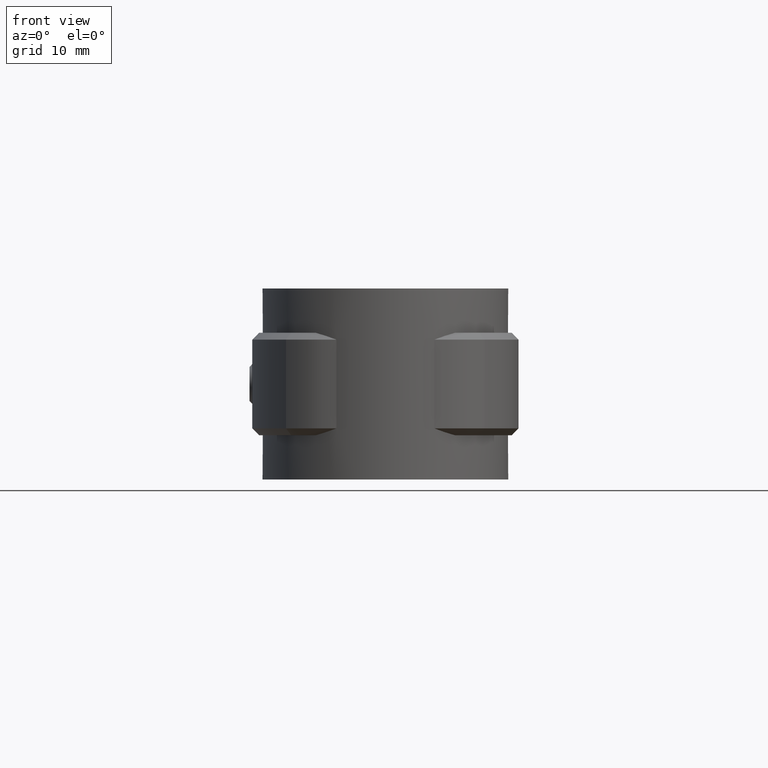
[diagram: clean part render]
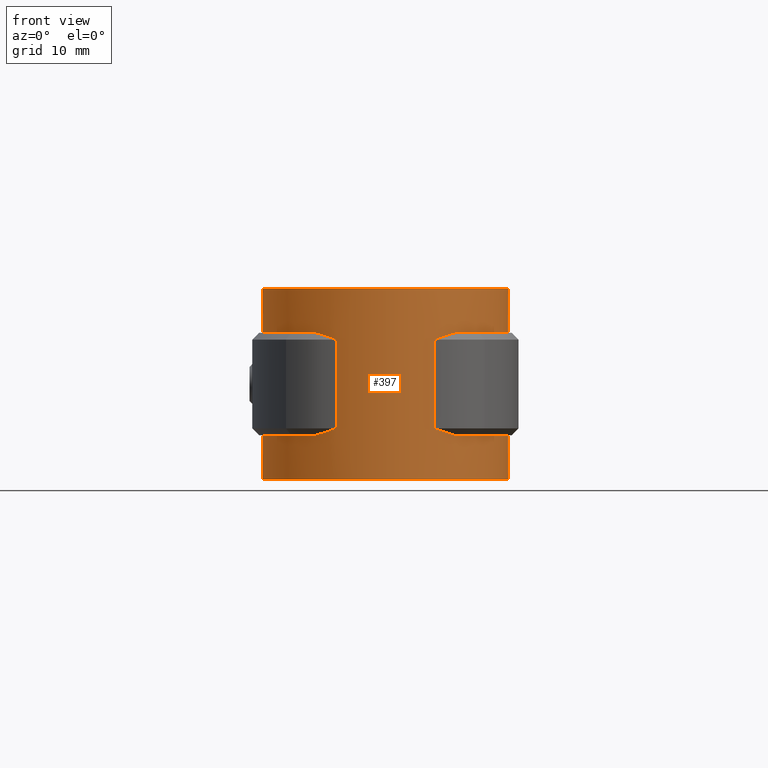
[diagram: same view with one face highlighted and labeled with its STEP entity id]
A machine part, front view. The second image highlights one B-rep face of the part: STEP entity #397.
In plain terms, the highlighted cylindrical surface (partial cylindrical patch) has radius 18.035 mm, axis along (0, 0, -1).
Its self-contained STEP definition (entity closure, byte-faithful):
#397 = ADVANCED_FACE( '', ( #693 ), #694, .T. );
#693 = FACE_OUTER_BOUND( '', #1575, .T. );
#694 = CYLINDRICAL_SURFACE( '', #1576, 18.0350000000000 );
#1575 = EDGE_LOOP( '', ( #3640, #3641, #3642, #3643, #3644, #3645, #3646, #3647, #3648, #3649, #3650, #3651, #3652, #3653, #3654, #3655 ) );
#1576 = AXIS2_PLACEMENT_3D( '', #3656, #3657, #3658 );
#3640 = ORIENTED_EDGE( '', *, *, #4930, .F. );
#3641 = ORIENTED_EDGE( '', *, *, #4931, .T. );
#3642 = ORIENTED_EDGE( '', *, *, #4932, .T. );
#3643 = ORIENTED_EDGE( '', *, *, #4933, .T. );
#3644 = ORIENTED_EDGE( '', *, *, #4934, .T. );
#3645 = ORIENTED_EDGE( '', *, *, #4923, .T. );
#3646 = ORIENTED_EDGE( '', *, *, #4914, .T. );
#3647 = ORIENTED_EDGE( '', *, *, #4783, .F. );
#3648 = ORIENTED_EDGE( '', *, *, #4935, .T. );
#3649 = ORIENTED_EDGE( '', *, *, #4936, .T. );
#3650 = ORIENTED_EDGE( '', *, *, #4937, .T. );
#3651 = ORIENTED_EDGE( '', *, *, #4938, .T. );
#3652 = ORIENTED_EDGE( '', *, *, #4939, .F. );
#3653 = ORIENTED_EDGE( '', *, *, #4777, .F. );
#3654 = ORIENTED_EDGE( '', *, *, #4775, .F. );
#3655 = ORIENTED_EDGE( '', *, *, #4929, .T. );
#3656 = CARTESIAN_POINT( '', ( 0.000000000000000, 0.000000000000000, -26.5000000000000 ) );
#3657 = DIRECTION( '', ( 0.000000000000000, 0.000000000000000, -1.00000000000000 ) );
#3658 = DIRECTION( '', ( 0.000000000000000, -1.00000000000000, 0.000000000000000 ) );
#4775 = EDGE_CURVE( '', #5446, #5429, #5448, .T. );
#4777 = EDGE_CURVE( '', #5429, #5451, #5452, .T. );
#4783 = EDGE_CURVE( '', #5461, #5463, #5464, .T. );
#4914 = EDGE_CURVE( '', #5684, #5463, #5685, .T. );
#4923 = EDGE_CURVE( '', #5700, #5684, #5701, .T. );
#4929 = EDGE_CURVE( '', #5446, #5710, #5712, .T. );
#4930 = EDGE_CURVE( '', #5713, #5710, #5714, .T. );
#4931 = EDGE_CURVE( '', #5713, #5715, #5716, .T. );
#4932 = EDGE_CURVE( '', #5715, #5717, #5718, .T. );
#4933 = EDGE_CURVE( '', #5717, #5719, #5720, .T. );
#4934 = EDGE_CURVE( '', #5719, #5700, #5721, .T. );
#4935 = EDGE_CURVE( '', #5461, #5722, #5723, .T. );
#4936 = EDGE_CURVE( '', #5722, #5724, #5725, .T. );
#4937 = EDGE_CURVE( '', #5724, #5726, #5727, .F. );
#4938 = EDGE_CURVE( '', #5726, #5728, #5729, .T. );
#4939 = EDGE_CURVE( '', #5451, #5728, #5730, .T. );
#5429 = VERTEX_POINT( '', #7111 );
#5446 = VERTEX_POINT( '', #7133 );
#5448 = CIRCLE( '', #7136, 18.0350000000000 );
#5451 = VERTEX_POINT( '', #7140 );
#5452 = LINE( '', #7141, #7142 );
#5461 = VERTEX_POINT( '', #7159 );
#5463 = VERTEX_POINT( '', #7162 );
#5464 = LINE( '', #7163, #7164 );
#5684 = VERTEX_POINT( '', #8114 );
#5685 = CIRCLE( '', #8115, 18.0350000000000 );
#5700 = VERTEX_POINT( '', #8135 );
#5701 = LINE( '', #8136, #8137 );
#5710 = VERTEX_POINT( '', #8154 );
#5712 = LINE( '', #8157, #8158 );
#5713 = VERTEX_POINT( '', #8159 );
#5714 = CIRCLE( '', #8160, 18.0350000000000 );
#5715 = VERTEX_POINT( '', #8161 );
#5716 = B_SPLINE_CURVE_WITH_KNOTS( '', 3, ( #8162, #8163, #8164, #8165 ), .UNSPECIFIED., .F., .F., ( 4, 4 ), ( 0.000000000000000, 0.00356639113726257 ), .UNSPECIFIED. );
#5717 = VERTEX_POINT( '', #8166 );
#5718 = LINE( '', #8167, #8168 );
#5719 = VERTEX_POINT( '', #8169 );
#5720 = B_SPLINE_CURVE_WITH_KNOTS( '', 3, ( #8170, #8171, #8172, #8173 ), .UNSPECIFIED., .F., .F., ( 4, 4 ), ( 0.000000000000000, 0.00356639113726257 ), .UNSPECIFIED. );
#5721 = CIRCLE( '', #8174, 18.0350000000000 );
#5722 = VERTEX_POINT( '', #8175 );
#5723 = CIRCLE( '', #8176, 18.0350000000000 );
#5724 = VERTEX_POINT( '', #8177 );
#5725 = B_SPLINE_CURVE_WITH_KNOTS( '', 3, ( #8178, #8179, #8180, #8181 ), .UNSPECIFIED., .F., .F., ( 4, 4 ), ( 0.000000000000000, 0.00356639113726257 ), .UNSPECIFIED. );
#5726 = VERTEX_POINT( '', #8182 );
#5727 = LINE( '', #8183, #8184 );
#5728 = VERTEX_POINT( '', #8185 );
#5729 = B_SPLINE_CURVE_WITH_KNOTS( '', 3, ( #8186, #8187, #8188, #8189 ), .UNSPECIFIED., .F., .F., ( 4, 4 ), ( 0.000000000000000, 0.00356639113726257 ), .UNSPECIFIED. );
#5730 = CIRCLE( '', #8190, 18.0350000000000 );
#7111 = CARTESIAN_POINT( '', ( -6.10000000000000, 16.9720719124095, -26.5000000000000 ) );
#7133 = CARTESIAN_POINT( '', ( 6.10000000000001, 16.9720719124095, -26.5000000000000 ) );
#7136 = AXIS2_PLACEMENT_3D( '', #9044, #9045, #9046 );
#7140 = CARTESIAN_POINT( '', ( -6.10000000000000, 16.9720719124095, -20.0000000000000 ) );
#7141 = CARTESIAN_POINT( '', ( -6.10000000000000, 16.9720719124095, -26.5000000000000 ) );
#7142 = VECTOR( '', #9048, 1000.00000000000 );
#7159 = CARTESIAN_POINT( '', ( -6.10000000000000, 16.9720719124095, -5.00000000000000 ) );
#7162 = CARTESIAN_POINT( '', ( -6.10000000000000, 16.9720719124095, 1.50000000000000 ) );
#7163 = CARTESIAN_POINT( '', ( -6.10000000000000, 16.9720719124095, -26.5000000000000 ) );
#7164 = VECTOR( '', #9052, 1000.00000000000 );
#8114 = CARTESIAN_POINT( '', ( 6.10000000000001, 16.9720719124095, 1.50000000000000 ) );
#8115 = AXIS2_PLACEMENT_3D( '', #9183, #9184, #9185 );
#8135 = CARTESIAN_POINT( '', ( 6.10000000000001, 16.9720719124095, -5.00000000000000 ) );
#8136 = CARTESIAN_POINT( '', ( 6.10000000000001, 16.9720719124095, -26.5000000000000 ) );
#8137 = VECTOR( '', #9200, 1000.00000000000 );
#8154 = CARTESIAN_POINT( '', ( 6.10000000000001, 16.9720719124095, -20.0000000000000 ) );
#8157 = CARTESIAN_POINT( '', ( 6.10000000000001, 16.9720719124095, -26.5000000000000 ) );
#8158 = VECTOR( '', #9204, 1000.00000000000 );
#8159 = CARTESIAN_POINT( '', ( 10.1699563448573, -14.8940663669696, -20.0000000000000 ) );
#8160 = AXIS2_PLACEMENT_3D( '', #9205, #9206, #9207 );
#8161 = CARTESIAN_POINT( '', ( 7.17238060487725, -16.5474524159697, -19.0000000000000 ) );
#8162 = CARTESIAN_POINT( '', ( 10.1699563448573, -14.8940663669696, -20.0000000000000 ) );
#8163 = CARTESIAN_POINT( '', ( 9.20551594035221, -15.5526049130839, -19.7400863560935 ) );
#8164 = CARTESIAN_POINT( '', ( 8.20683278901874, -16.0990761586644, -19.3975274280984 ) );
#8165 = CARTESIAN_POINT( '', ( 7.17238060487725, -16.5474524159697, -19.0000000000000 ) );
#8166 = CARTESIAN_POINT( '', ( 7.17238060487725, -16.5474524159697, -6.00000000000000 ) );
#8167 = CARTESIAN_POINT( '', ( 7.17238060487725, -16.5474524159697, -12.5000000000000 ) );
#8168 = VECTOR( '', #9208, 1000.00000000000 );
#8169 = CARTESIAN_POINT( '', ( 10.1699563448573, -14.8940663669696, -5.00000000000000 ) );
#8170 = CARTESIAN_POINT( '', ( 7.17238060487725, -16.5474524159697, -6.00000000000000 ) );
#8171 = CARTESIAN_POINT( '', ( 8.20683278901874, -16.0990761586644, -5.60247257190161 ) );
#8172 = CARTESIAN_POINT( '', ( 9.20551594035221, -15.5526049130839, -5.25991364390649 ) );
#8173 = CARTESIAN_POINT( '', ( 10.1699563448573, -14.8940663669696, -5.00000000000000 ) );
#8174 = AXIS2_PLACEMENT_3D( '', #9209, #9210, #9211 );
#8175 = CARTESIAN_POINT( '', ( -10.1699563448573, -14.8940663669696, -5.00000000000000 ) );
#8176 = AXIS2_PLACEMENT_3D( '', #9212, #9213, #9214 );
#8177 = CARTESIAN_POINT( '', ( -7.17238060487725, -16.5474524159697, -6.00000000000000 ) );
#8178 = CARTESIAN_POINT( '', ( -10.1699563448573, -14.8940663669696, -5.00000000000000 ) );
#8179 = CARTESIAN_POINT( '', ( -9.20551594035221, -15.5526049130839, -5.25991364390649 ) );
#8180 = CARTESIAN_POINT( '', ( -8.20683278901874, -16.0990761586644, -5.60247257190161 ) );
#8181 = CARTESIAN_POINT( '', ( -7.17238060487725, -16.5474524159697, -6.00000000000000 ) );
#8182 = CARTESIAN_POINT( '', ( -7.17238060487725, -16.5474524159697, -19.0000000000000 ) );
#8183 = CARTESIAN_POINT( '', ( -7.17238060487725, -16.5474524159697, -12.5000000000000 ) );
#8184 = VECTOR( '', #9215, 1000.00000000000 );
#8185 = CARTESIAN_POINT( '', ( -10.1699563448573, -14.8940663669696, -20.0000000000000 ) );
#8186 = CARTESIAN_POINT( '', ( -7.17238060487725, -16.5474524159697, -19.0000000000000 ) );
#8187 = CARTESIAN_POINT( '', ( -8.20683278901874, -16.0990761586644, -19.3975274280984 ) );
#8188 = CARTESIAN_POINT( '', ( -9.20551594035221, -15.5526049130839, -19.7400863560935 ) );
#8189 = CARTESIAN_POINT( '', ( -10.1699563448573, -14.8940663669696, -20.0000000000000 ) );
#8190 = AXIS2_PLACEMENT_3D( '', #9216, #9217, #9218 );
#9044 = CARTESIAN_POINT( '', ( 0.000000000000000, 0.000000000000000, -26.5000000000000 ) );
#9045 = DIRECTION( '', ( 0.000000000000000, 0.000000000000000, -1.00000000000000 ) );
#9046 = DIRECTION( '', ( 1.00000000000000, 0.000000000000000, 0.000000000000000 ) );
#9048 = DIRECTION( '', ( 0.000000000000000, 0.000000000000000, 1.00000000000000 ) );
#9052 = DIRECTION( '', ( 0.000000000000000, 0.000000000000000, 1.00000000000000 ) );
#9183 = CARTESIAN_POINT( '', ( 0.000000000000000, 0.000000000000000, 1.50000000000000 ) );
#9184 = DIRECTION( '', ( 0.000000000000000, 0.000000000000000, -1.00000000000000 ) );
#9185 = DIRECTION( '', ( 1.00000000000000, 0.000000000000000, 0.000000000000000 ) );
#9200 = DIRECTION( '', ( 0.000000000000000, 0.000000000000000, 1.00000000000000 ) );
#9204 = DIRECTION( '', ( 0.000000000000000, 0.000000000000000, 1.00000000000000 ) );
#9205 = CARTESIAN_POINT( '', ( 0.000000000000000, 0.000000000000000, -20.0000000000000 ) );
#9206 = DIRECTION( '', ( 0.000000000000000, 0.000000000000000, 1.00000000000000 ) );
#9207 = DIRECTION( '', ( 1.00000000000000, 0.000000000000000, 0.000000000000000 ) );
#9208 = DIRECTION( '', ( 0.000000000000000, 0.000000000000000, 1.00000000000000 ) );
#9209 = CARTESIAN_POINT( '', ( 0.000000000000000, 0.000000000000000, -5.00000000000000 ) );
#9210 = DIRECTION( '', ( 0.000000000000000, 0.000000000000000, 1.00000000000000 ) );
#9211 = DIRECTION( '', ( 1.00000000000000, 0.000000000000000, 0.000000000000000 ) );
#9212 = CARTESIAN_POINT( '', ( 0.000000000000000, 0.000000000000000, -5.00000000000000 ) );
#9213 = DIRECTION( '', ( 0.000000000000000, 0.000000000000000, 1.00000000000000 ) );
#9214 = DIRECTION( '', ( 1.00000000000000, 0.000000000000000, 0.000000000000000 ) );
#9215 = DIRECTION( '', ( 0.000000000000000, 0.000000000000000, 1.00000000000000 ) );
#9216 = CARTESIAN_POINT( '', ( 0.000000000000000, 0.000000000000000, -20.0000000000000 ) );
#9217 = DIRECTION( '', ( 0.000000000000000, 0.000000000000000, 1.00000000000000 ) );
#9218 = DIRECTION( '', ( 1.00000000000000, 0.000000000000000, 0.000000000000000 ) );